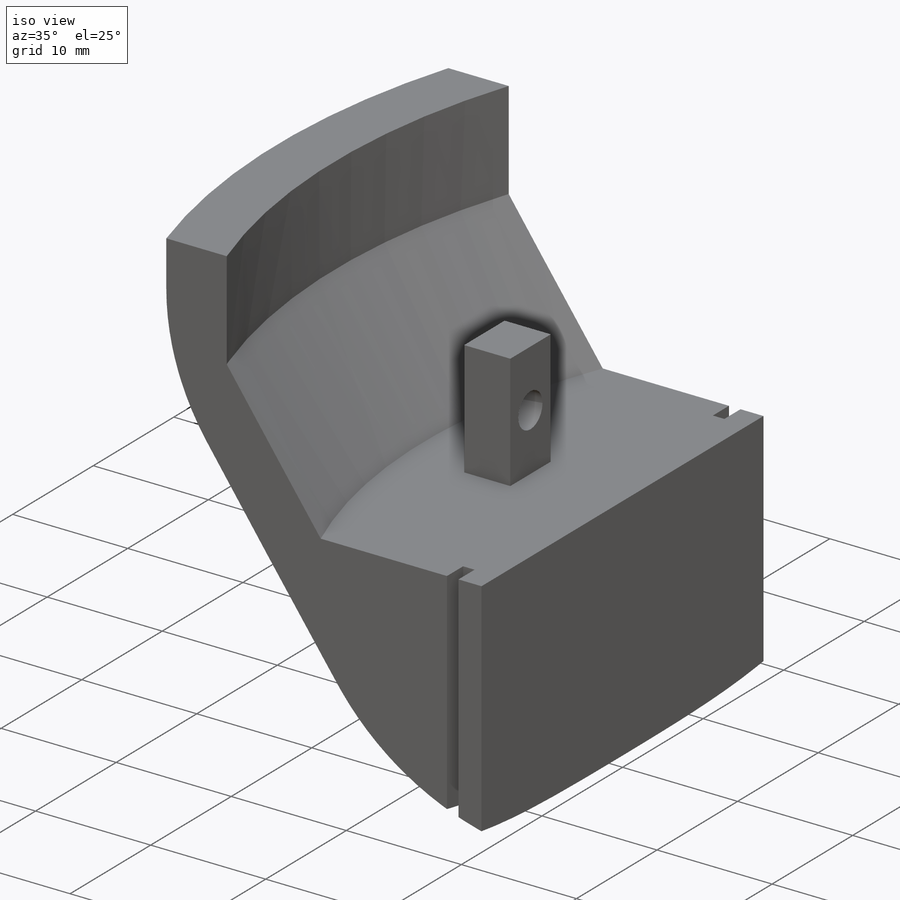
[diagram: iso view]
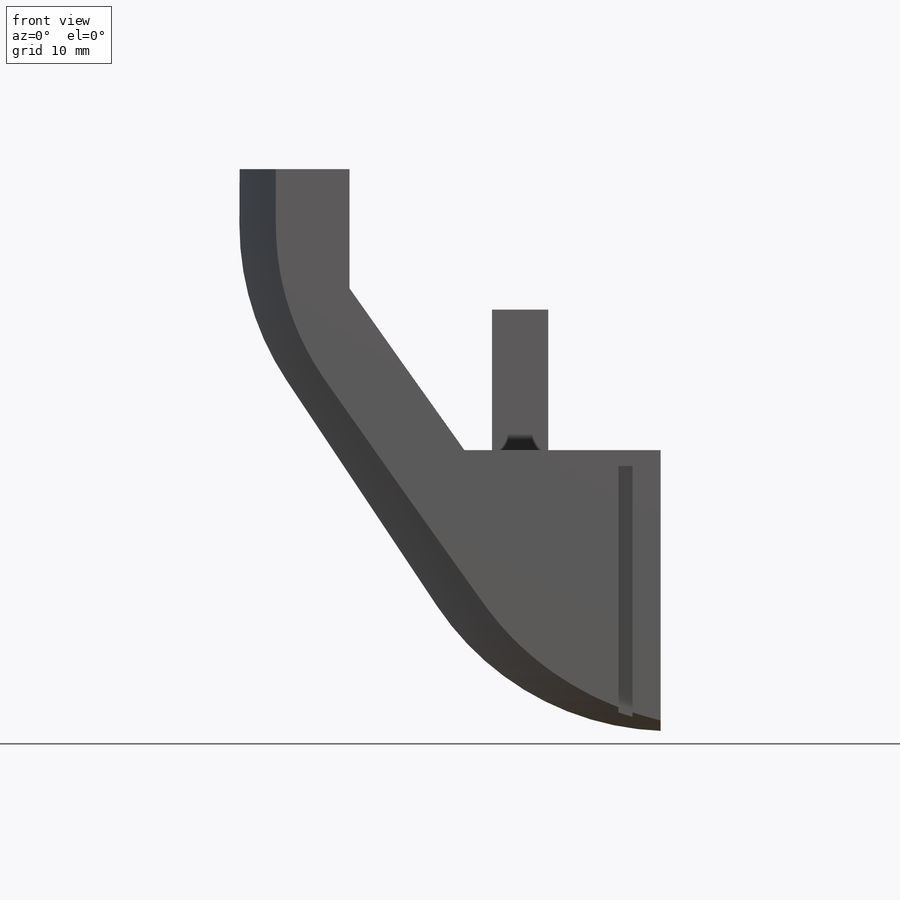
[diagram: front view]
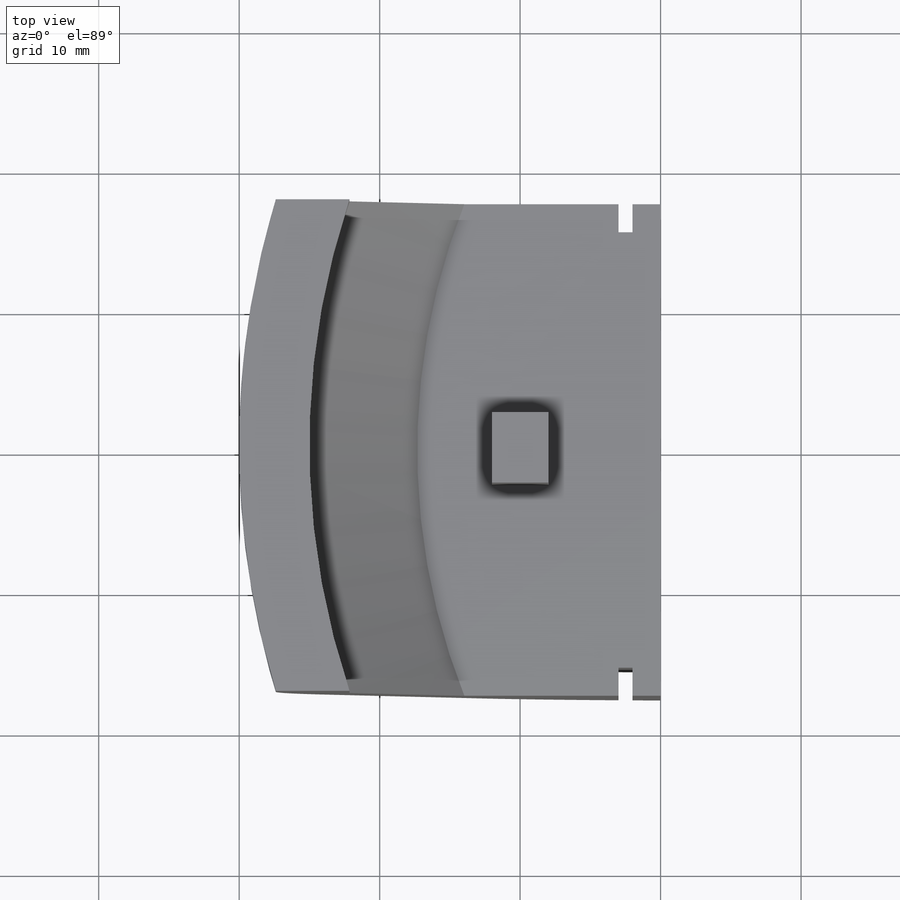
[diagram: top view]
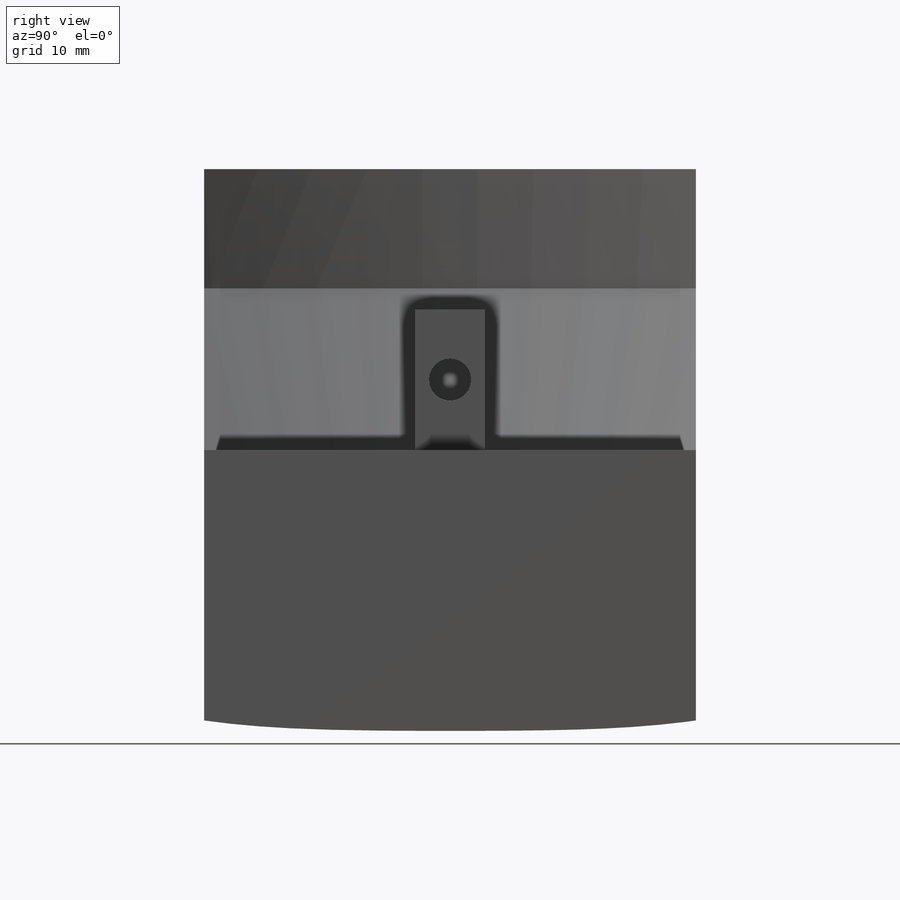
[diagram: right view]
SOLIDWORKS PART (.sldprt)
format: sldprt  version: not decoded by parser v0  size: 319,488 bytes
history: native  units: mm
features: sketch x7, cut_extrude x5, extrude x2, material x1, chamfer x1, shell x1, fillet x1 (+12 scaffold rows collapsed)
feature tree (30):
  scaffold x12  (default folders/planes/origin — collapsed)
  material  "Material <not specified>"
  sketch  "Sketch3"  dims[D1=~52.665828mm]
  extrude  "Boss-Extrude2"  Depth=150mm
  chamfer  "Chamfer2"  Distance=20mm
  shell  "Shell1"  Thickness=5mm
  fillet  "Fillet2"  Radius=20mm
  sketch  "Sketch5"  dims[D1=35.0mm]
  cut_extrude  "Cut-Extrude1"  Depth=150mm
  sketch  "Sketch7"  dims[D1=30.0mm]
  cut_extrude  "Cut-Extrude3"  Depth=150mm
  sketch  "Sketch8"  dims[D1=10.0mm D2=5.0mm]
  extrude  "Boss-Extrude3"  Depth=10mm
  sketch  "Sketch9"  dims[D2=3.0mm D1=5.0mm]
  cut_extrude  "Cut-Extrude4"  [1 undecoded]
  sketch  "Sketch10"  dims[D1=2.0mm D2=1.0mm D3=20.0mm]
  cut_extrude  "Cut-Extrude5"  Depth=2mm
  sketch  "Sketch11"  dims[D1=2.0mm D2=1.0mm]
  cut_extrude  "Cut-Extrude6"  Depth=2mm
decode coverage: 16 of 17 modeling features carry decoded parameters
note: ~ marks probable driven/reference dimensions
note: 1 parameter value undecoded
note: suppression state not decoded; provenance and decode notes live in map.json
